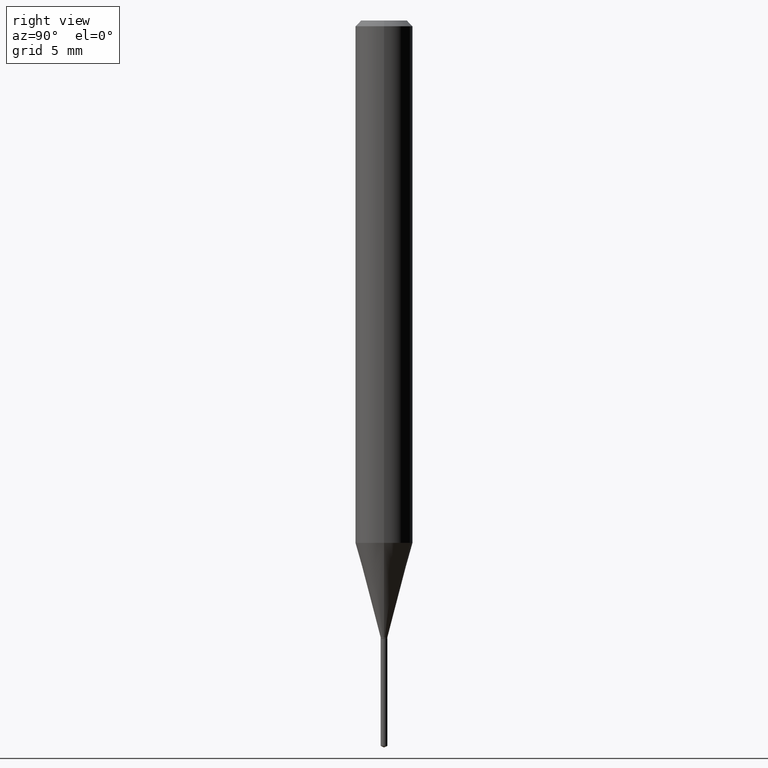
[diagram: clean part render]
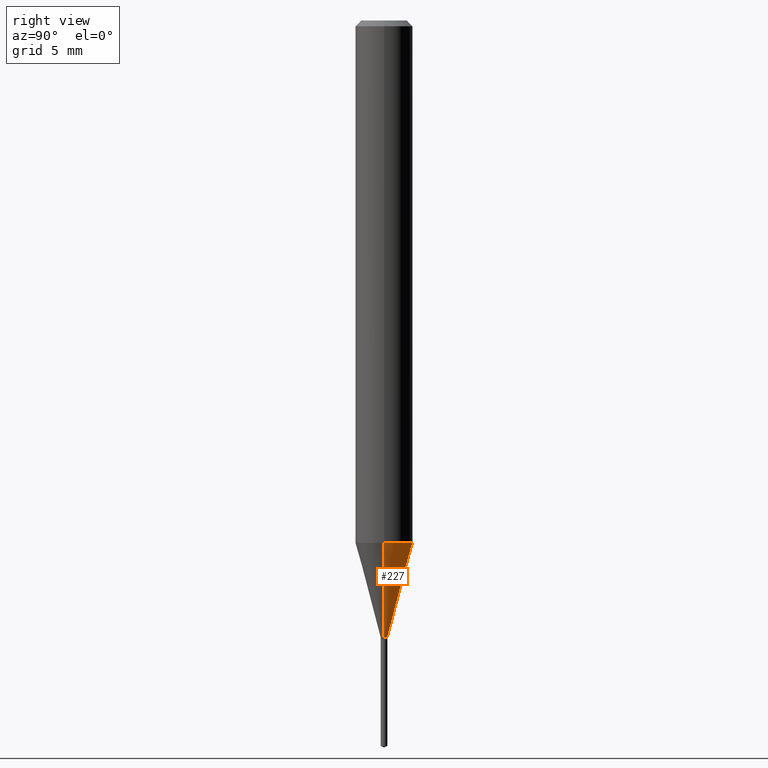
[diagram: same view with one face highlighted and labeled with its STEP entity id]
A machine part, right view. The second image highlights one B-rep face of the part: STEP entity #227.
In plain terms, the highlighted conical surface has half-angle 15 deg.
Its self-contained STEP definition (entity closure, byte-faithful):
#5 = CARTESIAN_POINT ( 'NONE',  ( 0.006899999999999999883, -4.480967150271292854E-15, -1.269600000000000062 ) ) ;
#7 = CARTESIAN_POINT ( 'NONE',  ( 3.104767196332649259E-29, -4.432784707795257778E-15, -1.269600000000000062 ) ) ;
#19 = DIRECTION ( 'NONE',  ( 1.000000000000000000, -6.982962677686264344E-15, 0.000000000000000000 ) ) ;
#31 = EDGE_CURVE ( 'NONE', #312, #271, #158, .T. ) ;
#39 = DIRECTION ( 'NONE',  ( 0.2588190451025213501, 1.565188264969621968E-15, 0.9659258262890682012 ) ) ;
#50 = VECTOR ( 'NONE', #39, 39.37007874015747433 ) ;
#53 = EDGE_CURVE ( 'NONE', #398, #156, #451, .T. ) ;
#54 = CARTESIAN_POINT ( 'NONE',  ( -0.05905000000000013710, -3.333674605453837154E-15, -1.074973550385283083 ) ) ;
#84 = FACE_OUTER_BOUND ( 'NONE', #192, .T. ) ;
#91 = LINE ( 'NONE', #5, #50 ) ;
#98 = DIRECTION ( 'NONE',  ( -2.445468806185136597E-29, 3.491481338843145583E-15, 1.000000000000000000 ) ) ;
#103 = CARTESIAN_POINT ( 'NONE',  ( 0.05905000000000013710, -4.165594037037551961E-15, -1.074973550385283083 ) ) ;
#129 = EDGE_CURVE ( 'NONE', #398, #312, #91, .T. ) ;
#156 = VERTEX_POINT ( 'NONE', #278 ) ;
#158 = CIRCLE ( 'NONE', #276, 0.05905000000000013710 ) ;
#169 = DIRECTION ( 'NONE',  ( -2.445468806185136597E-29, 3.491481338843145583E-15, 1.000000000000000000 ) ) ;
#190 = LINE ( 'NONE', #272, #479 ) ;
#192 = EDGE_LOOP ( 'NONE', ( #195, #422, #385, #301 ) ) ;
#195 = ORIENTED_EDGE ( 'NONE', *, *, #53, .T. ) ;
#211 = CARTESIAN_POINT ( 'NONE',  ( 3.104767196332649259E-29, -4.432784707795257778E-15, -1.269600000000000062 ) ) ;
#214 = DIRECTION ( 'NONE',  ( 1.000000000000000000, -6.982962677686234367E-15, 0.000000000000000000 ) ) ;
#227 = ADVANCED_FACE ( 'NONE', ( #84 ), #254, .T. ) ;
#254 = CONICAL_SURFACE ( 'NONE', #452, 0.006899999999999999883, 0.2617993877991500740 ) ;
#271 = VERTEX_POINT ( 'NONE', #54 ) ;
#272 = CARTESIAN_POINT ( 'NONE',  ( -0.006899999999999999883, -4.383757259027810743E-15, -1.269600000000000062 ) ) ;
#276 = AXIS2_PLACEMENT_3D ( 'NONE', #362, #98, #19 ) ;
#278 = CARTESIAN_POINT ( 'NONE',  ( -0.006899999999999999883, -4.386550444098885937E-15, -1.269600000000000062 ) ) ;
#290 = DIRECTION ( 'NONE',  ( 1.000000000000000000, -6.982962677686234367E-15, 0.000000000000000000 ) ) ;
#301 = ORIENTED_EDGE ( 'NONE', *, *, #129, .F. ) ;
#312 = VERTEX_POINT ( 'NONE', #103 ) ;
#355 = DIRECTION ( 'NONE',  ( -2.445468806185136597E-29, 3.491481338843145583E-15, 1.000000000000000000 ) ) ;
#362 = CARTESIAN_POINT ( 'NONE',  ( 2.628814284941295656E-29, -3.753250090920177830E-15, -1.074973550385283083 ) ) ;
#375 = CARTESIAN_POINT ( 'NONE',  ( 0.006899999999999999883, -4.480967150271292854E-15, -1.269600000000000062 ) ) ;
#380 = DIRECTION ( 'NONE',  ( -0.2588190451025213501, 5.211531920934551042E-15, 0.9659258262890682012 ) ) ;
#384 = EDGE_CURVE ( 'NONE', #156, #271, #190, .T. ) ;
#385 = ORIENTED_EDGE ( 'NONE', *, *, #31, .F. ) ;
#398 = VERTEX_POINT ( 'NONE', #375 ) ;
#422 = ORIENTED_EDGE ( 'NONE', *, *, #384, .T. ) ;
#423 = AXIS2_PLACEMENT_3D ( 'NONE', #211, #355, #214 ) ;
#451 = CIRCLE ( 'NONE', #423, 0.006899999999999999883 ) ;
#452 = AXIS2_PLACEMENT_3D ( 'NONE', #7, #169, #290 ) ;
#479 = VECTOR ( 'NONE', #380, 39.37007874015747433 ) ;